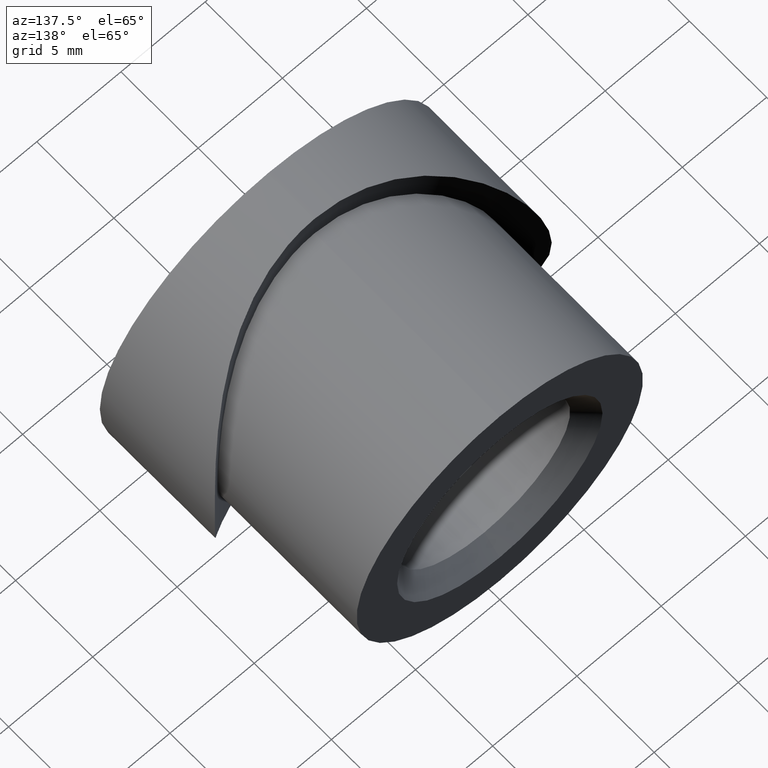
[diagram: clean part render]
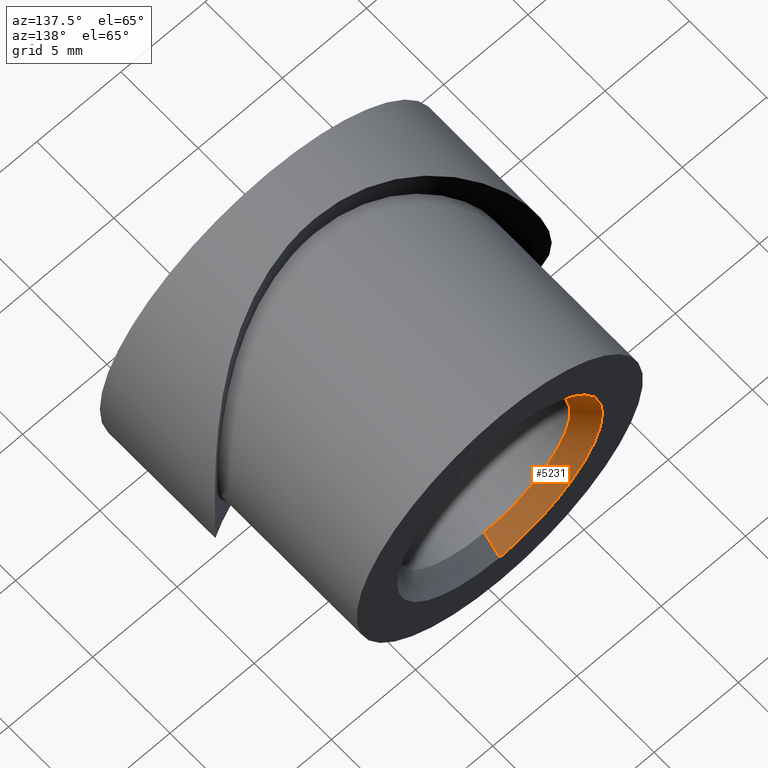
[diagram: same view with one face highlighted and labeled with its STEP entity id]
A machine part, auxiliary view. The second image highlights one B-rep face of the part: STEP entity #5231.
In plain terms, the highlighted conical surface has half-angle 45 deg.
Its self-contained STEP definition (entity closure, byte-faithful):
#52 = EDGE_CURVE ( 'NONE', #4391, #4375, #1069, .T. ) ;
#406 = EDGE_CURVE ( 'NONE', #10774, #6135, #9713, .T. ) ;
#1069 = CIRCLE ( 'NONE', #7388, 5.099999999999996100 ) ;
#1610 = CARTESIAN_POINT ( 'NONE',  ( 7.470345474798857300E-016, 15.00000000000000000, -6.100000000000001400 ) ) ;
#2175 = VECTOR ( 'NONE', #5712, 1000.000000000000100 ) ;
#2662 = CARTESIAN_POINT ( 'NONE',  ( 6.245698675651496900E-016, 13.99999999999999800, -5.099999999999996100 ) ) ;
#3744 = DIRECTION ( 'NONE',  ( 0.0000000000000000000, 0.0000000000000000000, -1.000000000000000000 ) ) ;
#4290 = DIRECTION ( 'NONE',  ( 0.0000000000000000000, 0.0000000000000000000, 1.000000000000000000 ) ) ;
#4375 = VERTEX_POINT ( 'NONE', #4510 ) ;
#4391 = VERTEX_POINT ( 'NONE', #8942 ) ;
#4510 = CARTESIAN_POINT ( 'NONE',  ( 0.0000000000000000000, 13.99999999999999800, 5.099999999999996100 ) ) ;
#4973 = DIRECTION ( 'NONE',  ( 8.659560562354951300E-017, 0.7071067811865460200, -0.7071067811865489100 ) ) ;
#5125 = EDGE_CURVE ( 'NONE', #4391, #6135, #6566, .T. ) ;
#5207 = ORIENTED_EDGE ( 'NONE', *, *, #8777, .F. ) ;
#5231 = ADVANCED_FACE ( 'NONE', ( #5333 ), #11035, .F. ) ;
#5333 = FACE_OUTER_BOUND ( 'NONE', #13996, .T. ) ;
#5364 = CARTESIAN_POINT ( 'NONE',  ( 0.0000000000000000000, 15.00000000000000000, 6.100000000000001400 ) ) ;
#5536 = AXIS2_PLACEMENT_3D ( 'NONE', #12560, #7116, #3744 ) ;
#5712 = DIRECTION ( 'NONE',  ( 0.0000000000000000000, 0.7071067811865460200, 0.7071067811865489100 ) ) ;
#6135 = VERTEX_POINT ( 'NONE', #1610 ) ;
#6566 = LINE ( 'NONE', #2662, #8114 ) ;
#7116 = DIRECTION ( 'NONE',  ( 0.0000000000000000000, -1.000000000000000000, 0.0000000000000000000 ) ) ;
#7388 = AXIS2_PLACEMENT_3D ( 'NONE', #10879, #11984, #11890 ) ;
#7406 = LINE ( 'NONE', #8146, #2175 ) ;
#7702 = DIRECTION ( 'NONE',  ( 0.0000000000000000000, 1.000000000000000000, 0.0000000000000000000 ) ) ;
#8114 = VECTOR ( 'NONE', #4973, 1000.000000000000100 ) ;
#8146 = CARTESIAN_POINT ( 'NONE',  ( 0.0000000000000000000, 13.99999999999999800, 5.099999999999996100 ) ) ;
#8777 = EDGE_CURVE ( 'NONE', #4375, #10774, #7406, .T. ) ;
#8942 = CARTESIAN_POINT ( 'NONE',  ( 6.245698675651496900E-016, 13.99999999999999800, -5.099999999999996100 ) ) ;
#9382 = ORIENTED_EDGE ( 'NONE', *, *, #5125, .T. ) ;
#9611 = ORIENTED_EDGE ( 'NONE', *, *, #52, .F. ) ;
#9713 = CIRCLE ( 'NONE', #5536, 6.100000000000001400 ) ;
#10774 = VERTEX_POINT ( 'NONE', #5364 ) ;
#10879 = CARTESIAN_POINT ( 'NONE',  ( 0.0000000000000000000, 13.99999999999999800, 0.0000000000000000000 ) ) ;
#11035 = CONICAL_SURFACE ( 'NONE', #13557, 5.099999999999996100, 0.7853981633974503900 ) ;
#11890 = DIRECTION ( 'NONE',  ( 0.0000000000000000000, 0.0000000000000000000, -1.000000000000000000 ) ) ;
#11984 = DIRECTION ( 'NONE',  ( 0.0000000000000000000, 1.000000000000000000, 0.0000000000000000000 ) ) ;
#12560 = CARTESIAN_POINT ( 'NONE',  ( 0.0000000000000000000, 15.00000000000000000, 0.0000000000000000000 ) ) ;
#12898 = ORIENTED_EDGE ( 'NONE', *, *, #406, .F. ) ;
#13292 = CARTESIAN_POINT ( 'NONE',  ( 0.0000000000000000000, 13.99999999999999800, 0.0000000000000000000 ) ) ;
#13557 = AXIS2_PLACEMENT_3D ( 'NONE', #13292, #7702, #4290 ) ;
#13996 = EDGE_LOOP ( 'NONE', ( #9611, #9382, #12898, #5207 ) ) ;